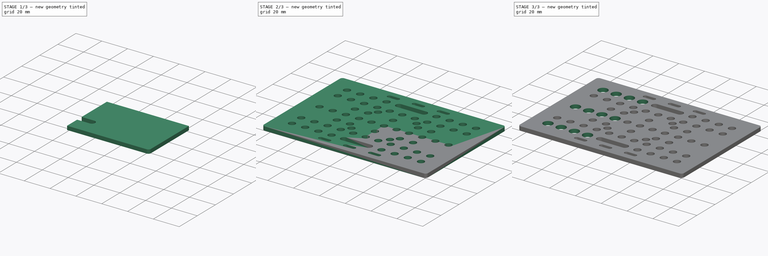
[diagram: build sequence overview — one tinted view per stage of 3, left to right]
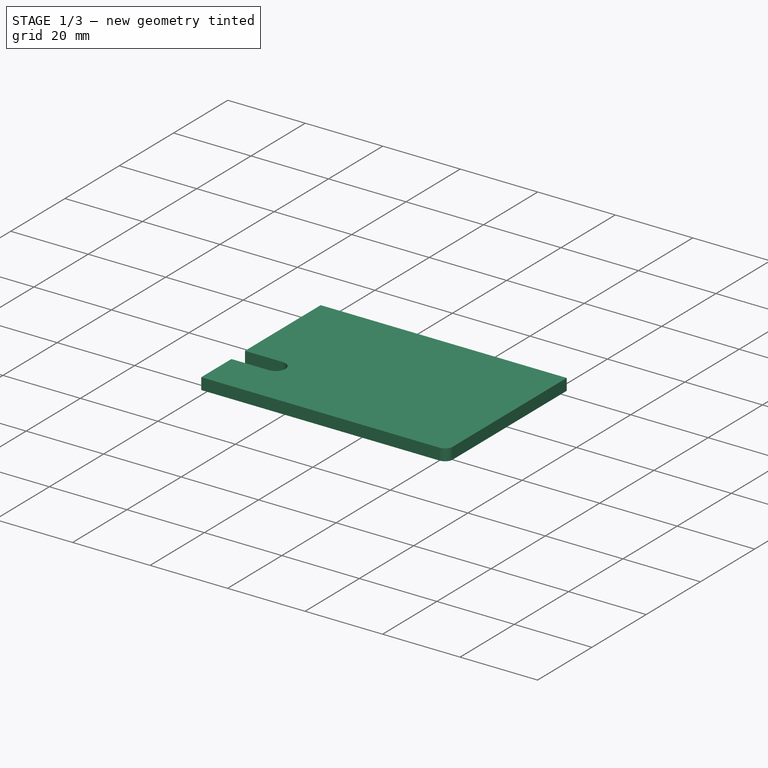
[diagram: stage 1 of 3 — iso view after this stage's code; geometry added in this stage tinted green]
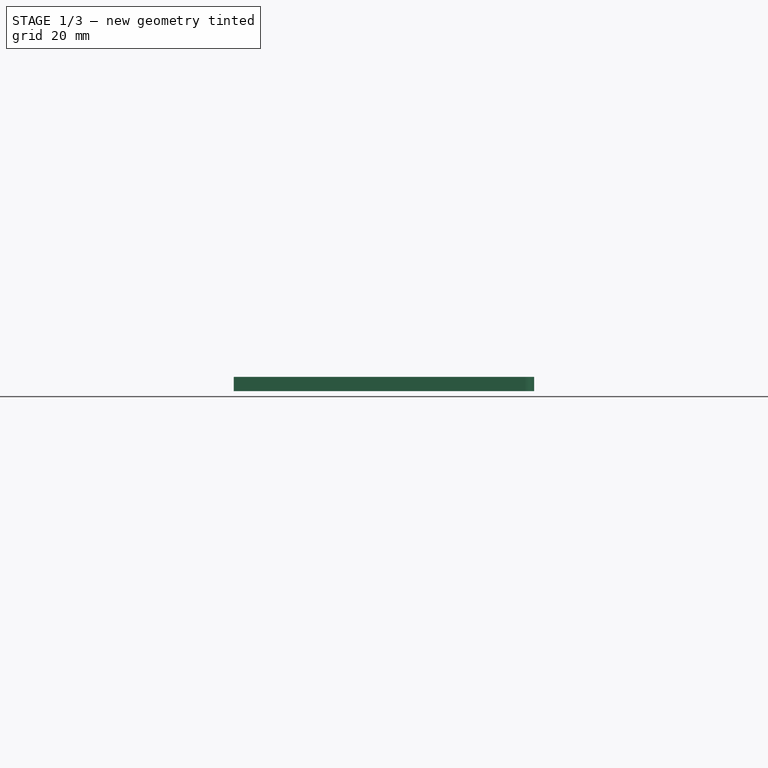
[diagram: stage 1 of 3 — front view after this stage's code; geometry added in this stage tinted green]
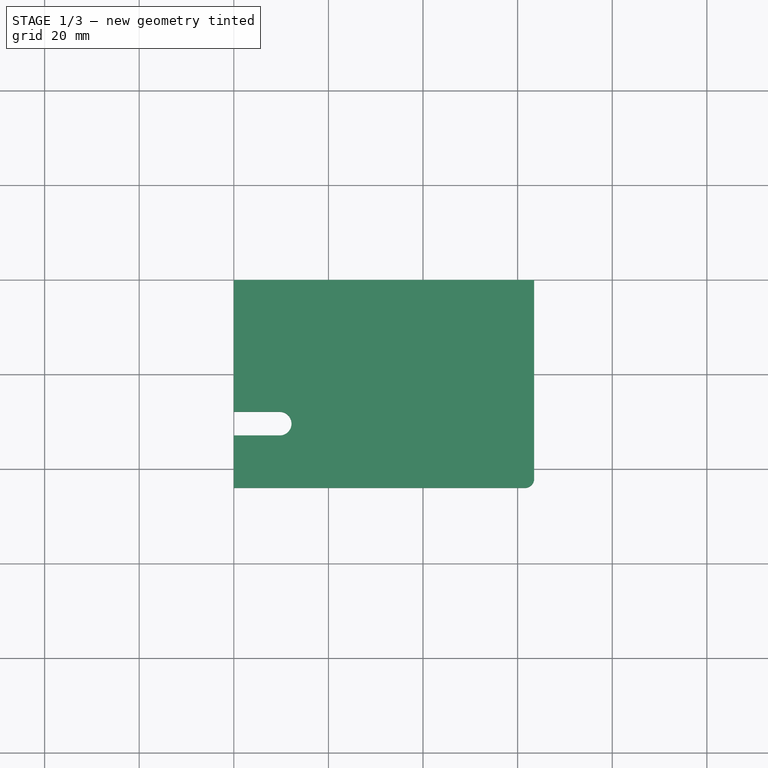
[diagram: stage 1 of 3 — top view after this stage's code; geometry added in this stage tinted green]
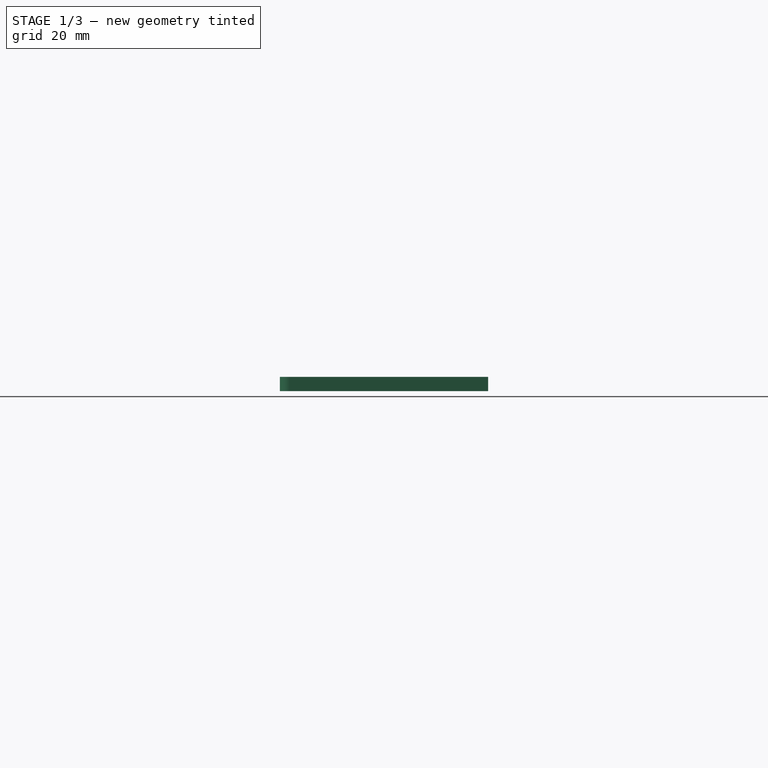
[diagram: stage 1 of 3 — right view after this stage's code; geometry added in this stage tinted green]
FCSTD DOCUMENT  (FreeCAD 1.0R39109 (Git))
Label: 3
License: All rights reserved
LicenseURL: https://en.wikipedia.org/wiki/All_rights_reserved
objects: Sketcher::SketchObject×4, PartDesign::Pocket×3, PartDesign::Mirrored×2, PartDesign::Pad×1, PartDesign::Fillet×1, PartDesign::MultiTransform×1, PartDesign::LinearPattern×1, PartDesign::Body×1
note: 32 computed .brp shape members not serialized (recipe doc carries the construction recipe); baked Part::Feature solids carry a one-line shape summary decoded from their .brp

FEATURE [Sketcher::SketchObject] Sketch
  ArcFitTolerance = 1e-06
  AttachmentSupport = -> [XY_Plane]
  FullyConstrained = true
  MakeInternals = false
  MapMode = 5
  sketch-geometry (8):
    g0: LineSegment StartX=0 StartY=0 StartZ=0 EndX=0 EndY=-27.9 EndZ=0
    g1: LineSegment StartX=0 StartY=-44 StartZ=0 EndX=63.5 EndY=-44 EndZ=0
    g2: LineSegment StartX=63.5 StartY=-44 StartZ=0 EndX=63.5 EndY=0 EndZ=0
    g3: LineSegment StartX=63.5 StartY=0 StartZ=0 EndX=0 EndY=0 EndZ=0
    g4: ArcOfCircle CenterX=9.7 CenterY=-30.4 CenterZ=0 NormalX=0 NormalY=0 NormalZ=1 AngleXU=0 Radius=2.5 StartAngle=4.71239 EndAngle=7.85398
    g5: LineSegment StartX=0 StartY=-27.9 StartZ=0 EndX=9.7 EndY=-27.9 EndZ=0
    g6: LineSegment StartX=0 StartY=-32.9 StartZ=0 EndX=9.7 EndY=-32.9 EndZ=0
    g7: LineSegment StartX=0 StartY=-32.9 StartZ=0 EndX=0 EndY=-44 EndZ=0
  constraints (23):
    c: Coincident(g7,g1)
    c: Coincident(g1,g2)
    c: Coincident(g2,g3)
    c: Coincident(g3,g0)
    c: Vertical(g0)
    c: Vertical(g2)
    c: Horizontal(g1)
    c: Horizontal(g3)
    c: Distance(g0,g2) = 63.5
    c: Distance(g1,g3) = 44
    c: Coincident(g0,g-1)
    c: Tangent(g4,g5) = 1.5708
    c: Tangent(g4,g6) = -1.5708
    c: Horizontal(g6)
    c: Distance(g4,g-2) = 9.7
    c: Distance(g4,g3) = 30.4
    c: PointOnObject(g6,g7)
    c: Coincident(g0,g5)
    c: PointOnObject(g7,g6)
    c: Horizontal(g5)
    c: Radius(g4) = 2.5
    c: PointOnObject(g6,g-2)
    c: Vertical(g7)
FEATURE [PartDesign::Pad] Pad
  Direction = (0,0,1)
  Length = 3
  Length2 = 10
  Profile = -> Sketch
  ReferenceAxis = -> Sketch [N_Axis]
  Refine = true
  Suppressed = false
  Type = 0
FEATURE [PartDesign::Fillet] Fillet
  Base = -> Pad [Edge5]
  BaseFeature = -> Pad
  Radius = 2
  Refine = true
  SupportTransform = false
  Suppressed = false
  UseAllEdges = false
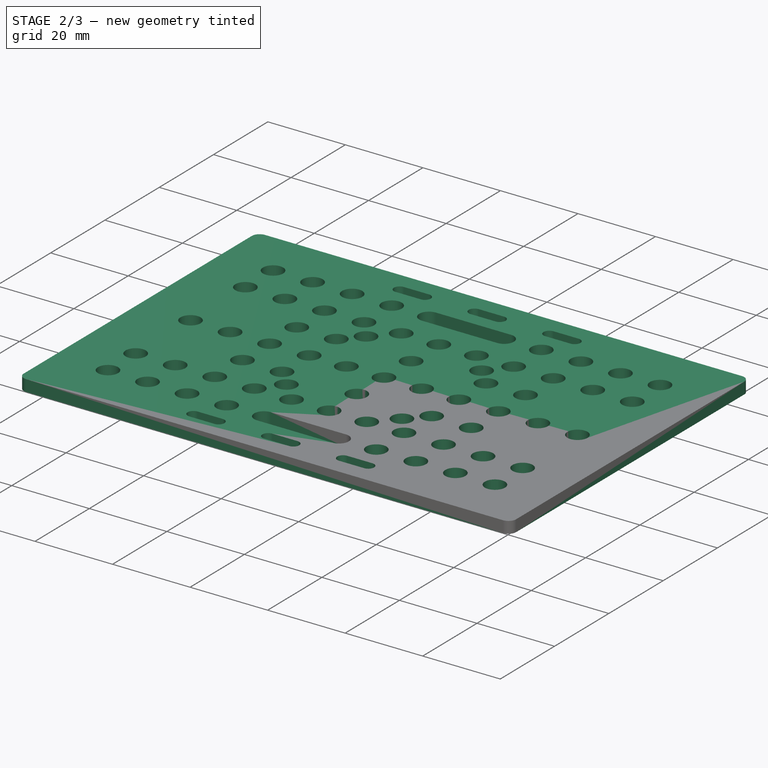
[diagram: stage 2 of 3 — iso view after this stage's code; geometry added in this stage tinted green]
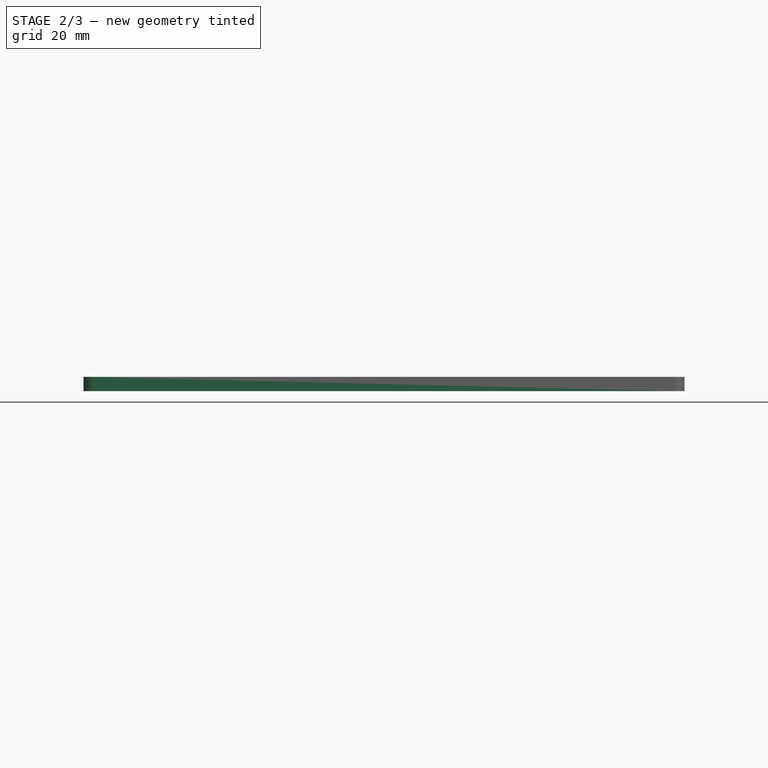
[diagram: stage 2 of 3 — front view after this stage's code; geometry added in this stage tinted green]
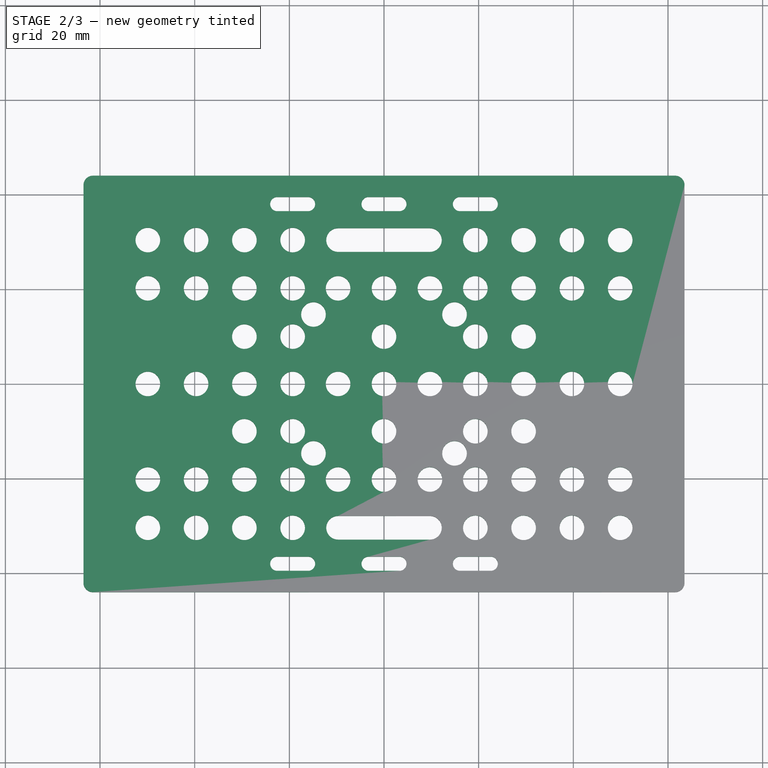
[diagram: stage 2 of 3 — top view after this stage's code; geometry added in this stage tinted green]
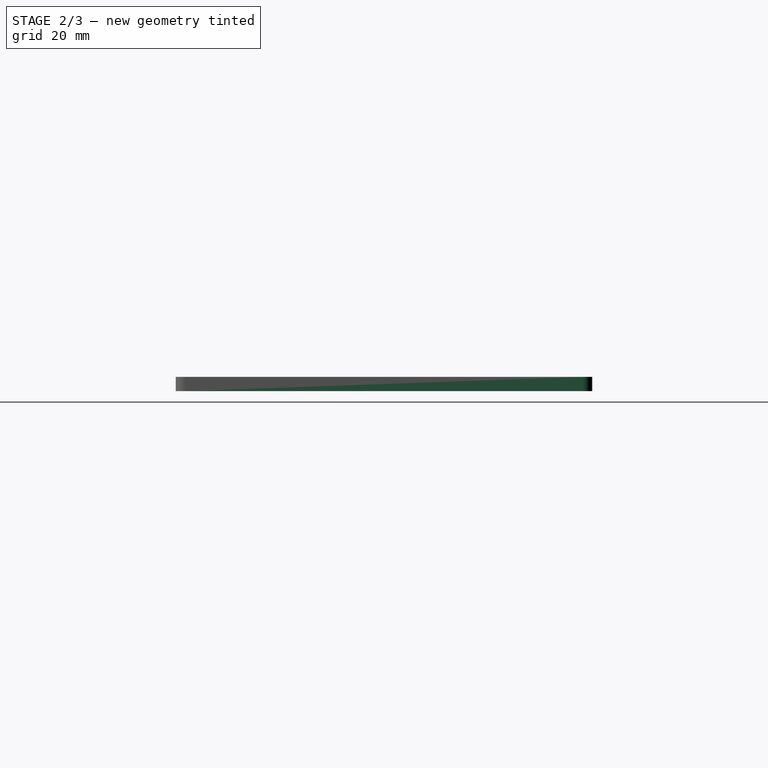
[diagram: stage 2 of 3 — right view after this stage's code; geometry added in this stage tinted green]
FEATURE [Sketcher::SketchObject] Sketch001
  ArcFitTolerance = 1e-06
  AttachmentSupport = -> [Fillet]
  FullyConstrained = true
  MakeInternals = false
  MapMode = 5
  Placement = pos=(0,0,3) rot=(0,0,1;0rad)
  sketch-geometry (21):
    g0: Circle CenterX=49.9 CenterY=0 CenterZ=0 NormalX=0 NormalY=0 NormalZ=1 AngleXU=0 Radius=2.6
    g1: Circle CenterX=49.9 CenterY=-20.2 CenterZ=0 NormalX=0 NormalY=0 NormalZ=1 AngleXU=0 Radius=2.6
    g2: Circle CenterX=49.9 CenterY=-30.4 CenterZ=0 NormalX=0 NormalY=0 NormalZ=1 AngleXU=0 Radius=2.6
    g3: Circle CenterX=39.7 CenterY=0 CenterZ=0 NormalX=0 NormalY=0 NormalZ=1 AngleXU=0 Radius=2.6
    g4: Circle CenterX=39.7 CenterY=-20.2 CenterZ=0 NormalX=0 NormalY=0 NormalZ=1 AngleXU=0 Radius=2.6
    g5: Circle CenterX=39.7 CenterY=-30.4 CenterZ=0 NormalX=0 NormalY=0 NormalZ=1 AngleXU=0 Radius=2.6
    g6: Circle CenterX=29.5 CenterY=0 CenterZ=0 NormalX=0 NormalY=0 NormalZ=1 AngleXU=0 Radius=2.6
    g7: Circle CenterX=29.5 CenterY=-20.2 CenterZ=0 NormalX=0 NormalY=0 NormalZ=1 AngleXU=0 Radius=2.6
    g8: Circle CenterX=29.5 CenterY=-30.4 CenterZ=0 NormalX=0 NormalY=0 NormalZ=1 AngleXU=0 Radius=2.6
    g9: Circle CenterX=19.3 CenterY=0 CenterZ=0 NormalX=0 NormalY=0 NormalZ=1 AngleXU=0 Radius=2.6
    g10: Circle CenterX=19.3 CenterY=-20.2 CenterZ=0 NormalX=0 NormalY=0 NormalZ=1 AngleXU=0 Radius=2.6
    g11: Circle CenterX=19.3 CenterY=-30.4 CenterZ=0 NormalX=0 NormalY=0 NormalZ=1 AngleXU=0 Radius=2.6
    g12: Circle CenterX=0 CenterY=0 CenterZ=0 NormalX=0 NormalY=0 NormalZ=1 AngleXU=0 Radius=2.6
    g13: Circle CenterX=0 CenterY=-20.2 CenterZ=0 NormalX=0 NormalY=0 NormalZ=1 AngleXU=0 Radius=2.6
    g14: Circle CenterX=9.7 CenterY=0 CenterZ=0 NormalX=0 NormalY=0 NormalZ=1 AngleXU=0 Radius=2.6
    g15: Circle CenterX=9.7 CenterY=-20.2 CenterZ=0 NormalX=0 NormalY=0 NormalZ=1 AngleXU=0 Radius=2.6
    g16: Circle CenterX=0 CenterY=-10 CenterZ=0 NormalX=0 NormalY=0 NormalZ=1 AngleXU=0 Radius=2.6
    g17: Circle CenterX=19.3 CenterY=-10 CenterZ=0 NormalX=0 NormalY=0 NormalZ=1 AngleXU=0 Radius=2.6
    g18: Circle CenterX=29.5 CenterY=-10 CenterZ=0 NormalX=0 NormalY=0 NormalZ=1 AngleXU=0 Radius=2.6
    g19: Circle CenterX=14.9 CenterY=-14.675 CenterZ=0 NormalX=0 NormalY=0 NormalZ=1 AngleXU=0 Radius=2.6
    g20: LineSegment [constr] StartX=9.7 StartY=-20.2 StartZ=0 EndX=19.3 EndY=-10 EndZ=0
  constraints (61):
    c: Diameter(g0) = 5.2
    c: Distance(g0,g-2) = 49.9
    c: PointOnObject(g0,g-1)
    c: Diameter(g1) = 5.2
    c: Distance(g1,g-2) = 49.9
    c: Distance(g1,g0) = 20.2
    c: Diameter(g2) = 5.2
    c: Distance(g2,g-1) = 30.4
    c: Distance(g2,g-2) = 49.9
    c: Diameter(g3) = 5.2
    c: Diameter(g6) = 5.2
    c: Diameter(g9) = 5.2
    c: Diameter(g4) = 5.2
    c: Diameter(g7) = 5.2
    c: Diameter(g10) = 5.2
    c: Distance(g4,g3) = 20.2
    c: Distance(g7,g6) = 20.2
    c: Distance(g10,g9) = 20.2
    c: Diameter(g5) = 5.2
    c: Diameter(g8) = 5.2
    c: Diameter(g11) = 5.2
    c: PointOnObject(g3,g-1)
    c: PointOnObject(g6,g-1)
    c: PointOnObject(g9,g-1)
    c: Distance(g9,g-2) = 19.3
    c: Vertical(g9,g10)
    c: Vertical(g11,g10)
    c: Distance(g6,g3) = 10.2
    c: Distance(g3,g0) = 10.2
    c: Vertical(g4,g3)
    c: Vertical(g7,g6)
    c: Vertical(g8,g7)
    c: Vertical(g5,g4)
    c: Horizontal(g11,g8)
    c: Horizontal(g8,g5)
    c: Horizontal(g5,g2)
    c: Diameter(g12) = 5.2
    c: Coincident(g12,g-1)
    c: Diameter(g13) = 5.2
    c: PointOnObject(g13,g-2)
    c: Distance(g13,g-1) = 20.2
    c: Diameter(g14) = 5.2
    c: Diameter(g15) = 5.2
    c: Horizontal(g14,g12)
    c: Horizontal(g15,g13)
    c: Vertical(g14,g15)
    c: Distance(g14,g-2) = 9.7
    c: Diameter(g18) = 5.2
    c: Diameter(g17) = 5.2
    c: Vertical(g17,g10)
    c: Diameter(g16) = 5.2
    c: Vertical(g16,g12)
    c: Horizontal(g16,g17)
    c: Horizontal(g17,g18)
    c: Distance(g16,g-1) = 10
    c: Vertical(g18,g6)
    c: Diameter(g19) = 5.2
    c: Coincident(g20,g15)
    c: Coincident(g20,g17)
    c: PointOnObject(g19,g20)
    c: Distance(g19,g-2) = 14.9
FEATURE [PartDesign::Pocket] Pocket
  BaseFeature = -> Fillet
  Direction = (0,0,-1)
  Length = 5
  Length2 = 5
  Profile = -> Sketch001
  ReferenceAxis = -> Sketch001 [N_Axis]
  Refine = true
  Suppressed = false
  Type = 1
FEATURE [Sketcher::SketchObject] Sketch002
  ArcFitTolerance = 1e-06
  FullyConstrained = true
  MakeInternals = false
  MapMode = 5
  Placement = pos=(0,0,3) rot=(0,0,1;0rad)
  sketch-geometry (8):
    g0: ArcOfCircle CenterX=-3.25 CenterY=-38 CenterZ=0 NormalX=0 NormalY=0 NormalZ=1 AngleXU=0 Radius=1.5 StartAngle=1.5708 EndAngle=4.71239
    g1: ArcOfCircle CenterX=3.25 CenterY=-38 CenterZ=0 NormalX=0 NormalY=0 NormalZ=1 AngleXU=0 Radius=1.5 StartAngle=4.71239 EndAngle=7.85398
    g2: LineSegment StartX=-3.25 StartY=-36.5 StartZ=0 EndX=3.25 EndY=-36.5 EndZ=0
    g3: LineSegment StartX=-3.25 StartY=-39.5 StartZ=0 EndX=3.25 EndY=-39.5 EndZ=0
    g4: ArcOfCircle CenterX=16.05 CenterY=-38 CenterZ=0 NormalX=0 NormalY=0 NormalZ=1 AngleXU=0 Radius=1.5 StartAngle=1.5708 EndAngle=4.71239
    g5: ArcOfCircle CenterX=22.55 CenterY=-38 CenterZ=0 NormalX=0 NormalY=0 NormalZ=1 AngleXU=0 Radius=1.5 StartAngle=4.71239 EndAngle=7.85398
    g6: LineSegment StartX=16.05 StartY=-36.5 StartZ=0 EndX=22.55 EndY=-36.5 EndZ=0
    g7: LineSegment StartX=16.05 StartY=-39.5 StartZ=0 EndX=22.55 EndY=-39.5 EndZ=0
  constraints (20):
    c: Tangent(g0,g2) = 1.5708
    c: Tangent(g0,g3) = -1.5708
    c: Tangent(g1,g2) = 1.5708
    c: Tangent(g1,g3) = -1.5708
    c: Equal(g0,g1)
    c: Horizontal(g3)
    c: Distance(g0,g1) = 6.5
    c: Radius(g0) = 1.5
    c: Distance(g1,g-2) = 3.25
    c: Distance(g1,g-1) = 38
    c: Tangent(g4,g6) = 1.5708
    c: Tangent(g4,g7) = -1.5708
    c: Tangent(g5,g6) = 1.5708
    c: Tangent(g5,g7) = -1.5708
    c: Equal(g4,g5)
    c: Horizontal(g7)
    c: Distance(g4,g5) = 6.5
    c: Radius(g4) = 1.5
    c: Distance(g5,g-2) = 22.55
    c: Distance(g5,g-1) = 38
FEATURE [PartDesign::Pocket] Pocket001
  BaseFeature = -> Pocket
  Direction = (0,0,-1)
  Length = 5
  Length2 = 5
  Profile = -> Sketch002
  ReferenceAxis = -> Sketch002 [N_Axis]
  Refine = true
  Suppressed = false
  Type = 1
FEATURE [PartDesign::Mirrored] Mirrored
  MirrorPlane = -> YZ_Plane
  Refine = true
  Suppressed = false
  TransformMode = 0
FEATURE [PartDesign::Mirrored] Mirrored001
  MirrorPlane = -> XZ_Plane
  Refine = true
  Suppressed = false
  TransformMode = 0
FEATURE [PartDesign::MultiTransform] MultiTransform
  BaseFeature = -> Pocket001
  Refine = true
  Suppressed = false
  TransformMode = 1
  Transformations = -> [Mirrored,Mirrored001]
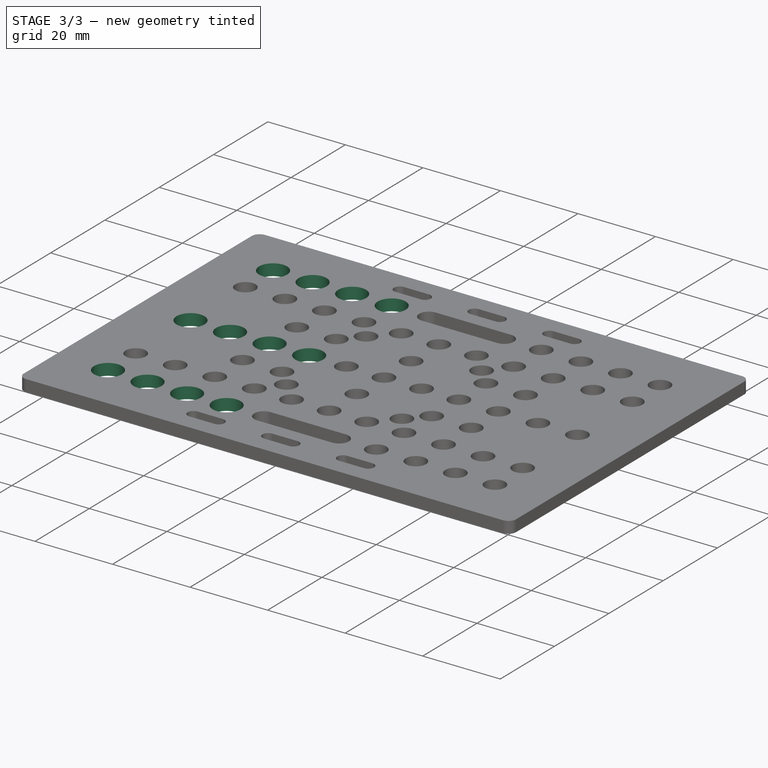
[diagram: stage 3 of 3 — iso view after this stage's code; geometry added in this stage tinted green]
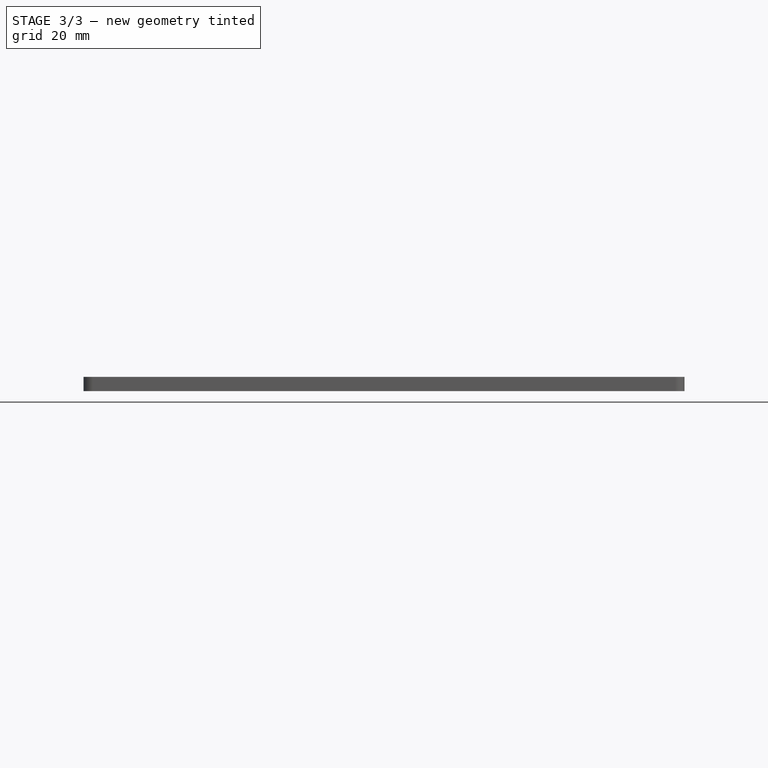
[diagram: stage 3 of 3 — front view after this stage's code; geometry added in this stage tinted green]
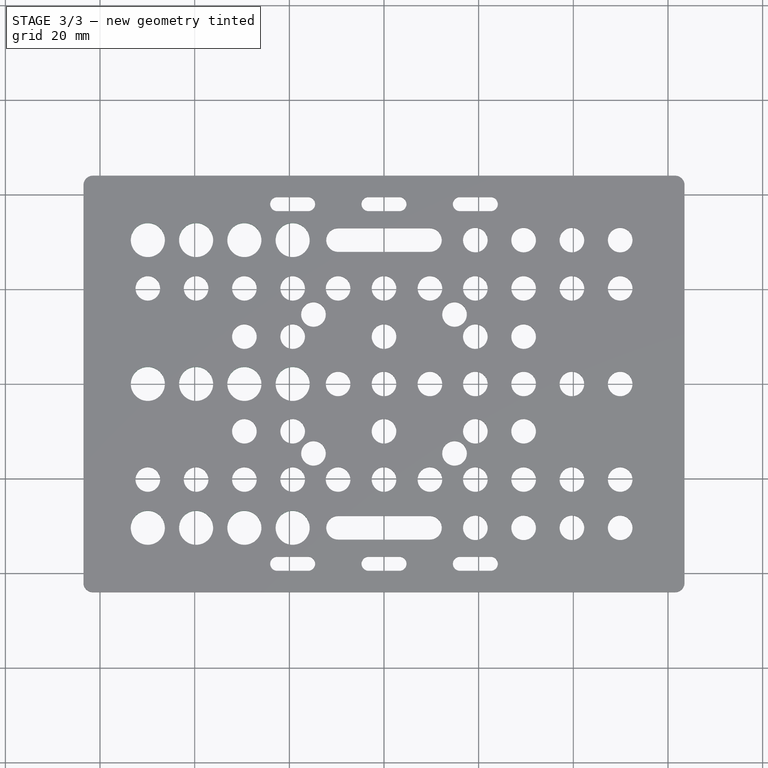
[diagram: stage 3 of 3 — top view after this stage's code; geometry added in this stage tinted green]
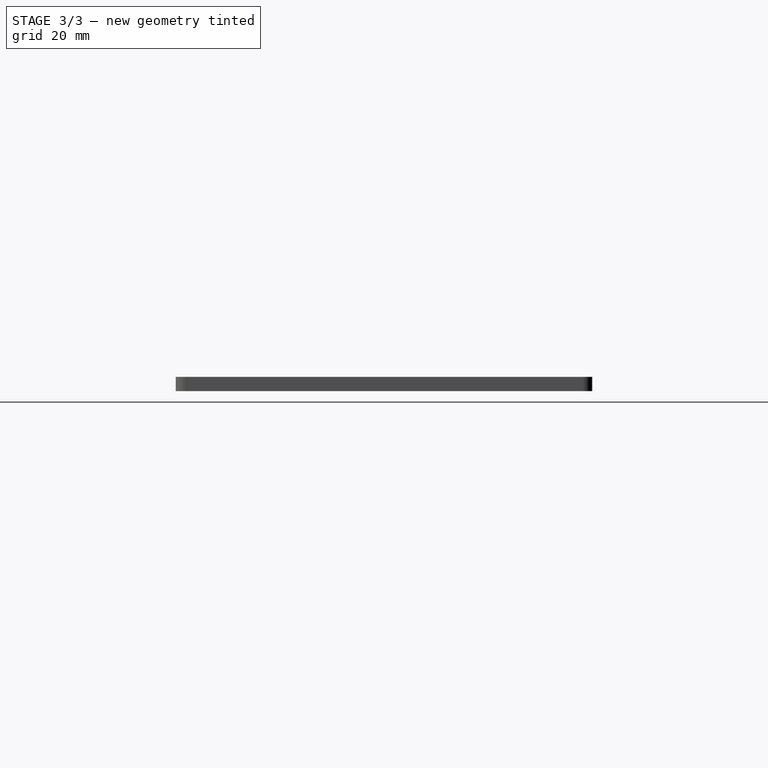
[diagram: stage 3 of 3 — right view after this stage's code; geometry added in this stage tinted green]
FEATURE [Sketcher::SketchObject] Sketch003
  ArcFitTolerance = 1e-06
  AttachmentSupport = -> [MultiTransform]
  ExternalGeometry = -> [MultiTransform]
  FullyConstrained = true
  MakeInternals = false
  MapMode = 5
  Placement = pos=(0,-7e-16,3) rot=(0,0,1;0rad)
  sketch-geometry (4):
    g0: Circle CenterX=-49.9 CenterY=-30.4 CenterZ=0 NormalX=0 NormalY=0 NormalZ=1 AngleXU=0 Radius=3.6
    g1: Circle CenterX=-39.7 CenterY=-30.4 CenterZ=0 NormalX=0 NormalY=0 NormalZ=1 AngleXU=0 Radius=3.6
    g2: Circle CenterX=-29.5 CenterY=-30.4 CenterZ=0 NormalX=0 NormalY=0 NormalZ=1 AngleXU=0 Radius=3.6
    g3: Circle CenterX=-19.3 CenterY=-30.4 CenterZ=0 NormalX=0 NormalY=0 NormalZ=1 AngleXU=0 Radius=3.6
  constraints (8):
    c: Coincident(g0,g-3)
    c: Coincident(g1,g-4)
    c: Coincident(g2,g-5)
    c: Coincident(g3,g-6)
    c: Diameter(g3) = 7.2
    c: Diameter(g2) = 7.2
    c: Diameter(g1) = 7.2
    c: Diameter(g0) = 7.2
FEATURE [PartDesign::Pocket] Pocket002
  BaseFeature = -> MultiTransform
  Direction = (0,0,-1)
  Length = 0
  Length2 = 5
  Profile = -> Sketch003
  ReferenceAxis = -> Sketch003 [N_Axis]
  Refine = true
  Suppressed = false
  Type = 1
FEATURE [PartDesign::LinearPattern] LinearPattern
  BaseFeature = -> Pocket002
  Direction = -> Sketch003 [V_Axis]
  Length = 60.8
  Mode = 1
  Occurrences = 3
  Offset = 30.4
  Originals = -> [Pocket002]
  Refine = true
  Suppressed = false
  TransformMode = 0
FEATURE [PartDesign::Body] Body
  AllowCompound = false
  Group = -> [Sketch,Pad,Fillet,Sketch001,Pocket,Sketch002,Pocket001,MultiTransform,Mirrored,Mirrored001,Sketch003,Pocket002,LinearPattern]
  Origin = -> Origin
  Tip = -> LinearPattern
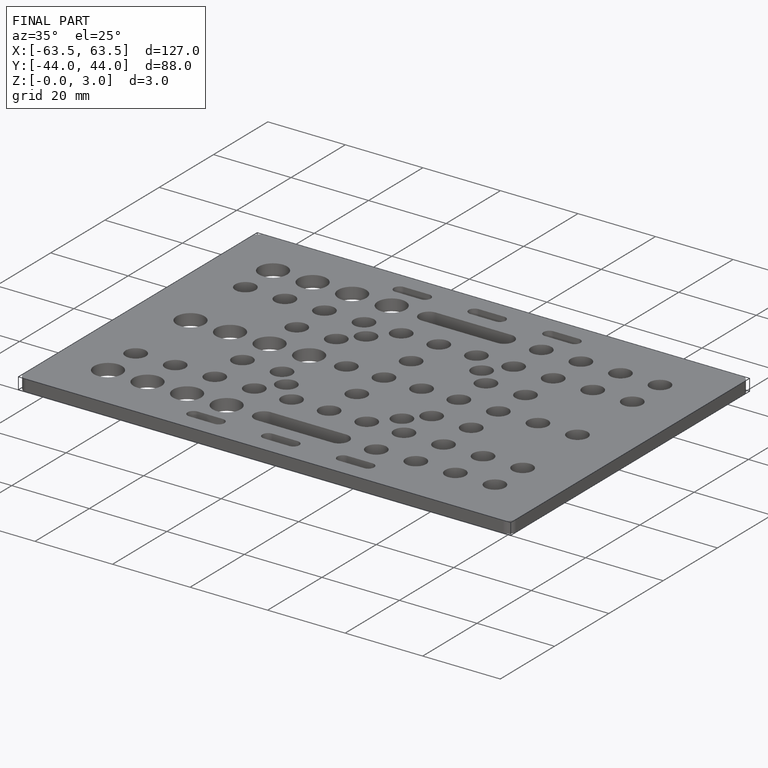
[diagram: finished part — iso view with bounding-box wireframe]
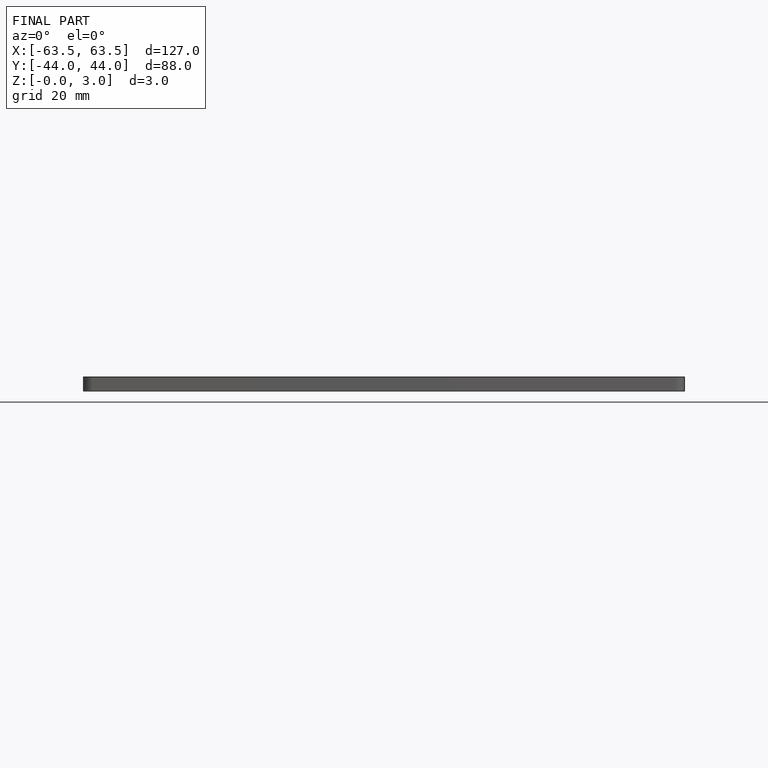
[diagram: finished part — front view with bounding-box wireframe]
